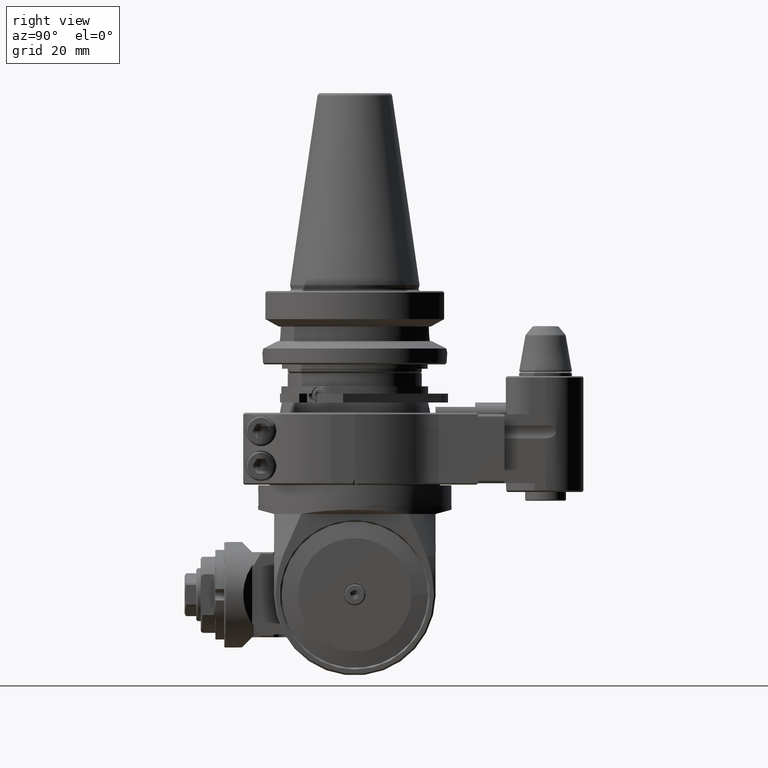
[diagram: clean part render]
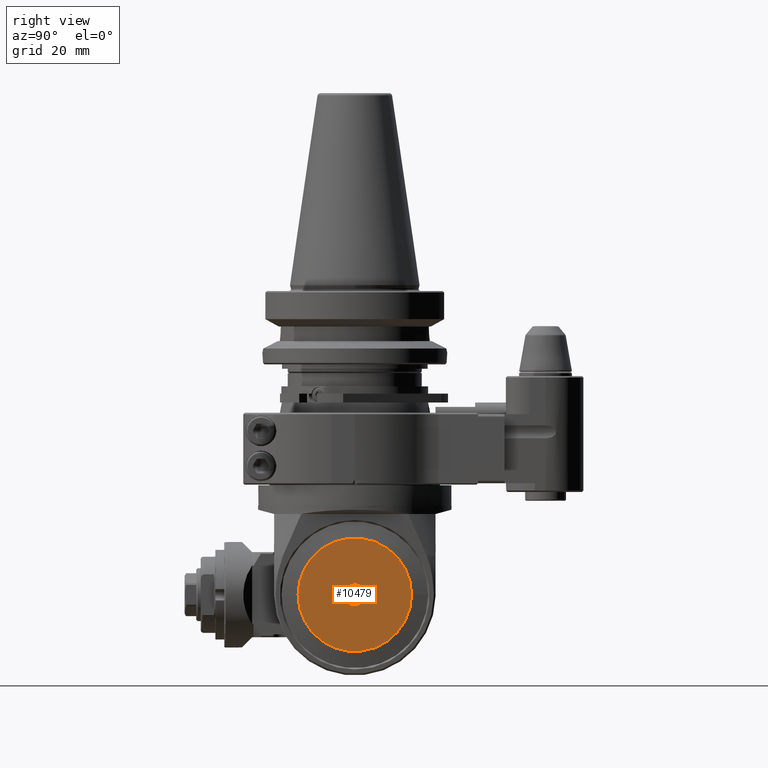
[diagram: same view with one face highlighted and labeled with its STEP entity id]
A machine part, right view. The second image highlights one B-rep face of the part: STEP entity #10479.
In plain terms, the highlighted planar face has unit normal (1, 0, -0).
Its self-contained STEP definition (entity closure, byte-faithful):
#278=FACE_BOUND('',#3458,.T.);
#2789=FACE_OUTER_BOUND('',#3457,.T.);
#3457=EDGE_LOOP('',(#9279));
#3458=EDGE_LOOP('',(#9280));
#3961=CIRCLE('',#11566,19.32871818038);
#3962=CIRCLE('',#11568,3.75);
#4929=VERTEX_POINT('',#18441);
#4930=VERTEX_POINT('',#18445);
#6398=EDGE_CURVE('',#4929,#4929,#3961,.T.);
#6399=EDGE_CURVE('',#4930,#4930,#3962,.T.);
#9279=ORIENTED_EDGE('',*,*,#6398,.T.);
#9280=ORIENTED_EDGE('',*,*,#6399,.T.);
#9914=PLANE('',#11567);
#10479=ADVANCED_FACE('',(#2789,#278),#9914,.T.);
#11566=AXIS2_PLACEMENT_3D('',#18443,#14393,#14394);
#11567=AXIS2_PLACEMENT_3D('',#18444,#14395,#14396);
#11568=AXIS2_PLACEMENT_3D('',#18446,#14397,#14398);
#14393=DIRECTION('center_axis',(0.,0.,-1.));
#14394=DIRECTION('ref_axis',(1.,0.,0.));
#14395=DIRECTION('center_axis',(0.,0.,-1.));
#14396=DIRECTION('ref_axis',(1.,0.,0.));
#14397=DIRECTION('center_axis',(0.,0.,1.));
#14398=DIRECTION('ref_axis',(1.,0.,0.));
#18441=CARTESIAN_POINT('',(-19.32871818038,-105.5,-28.5000000000012));
#18443=CARTESIAN_POINT('Origin',(0.,-105.5,-28.500000000001));
#18444=CARTESIAN_POINT('Origin',(-37.5,-105.5,-28.500000000001));
#18445=CARTESIAN_POINT('',(-3.75,-105.5,-28.500000000001));
#18446=CARTESIAN_POINT('Origin',(0.,-105.5,-28.500000000001));